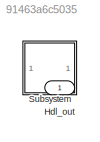
MODEL slx_91463a6c5035
KIND model
CONFIG AbsTol = auto
CONFIG EnableMultiTasking = off
CONFIG FixedStep = auto
CONFIG MaxStep = auto
CONFIG MinStep = auto
CONFIG RelTol = 1e-3
CONFIG SampleTimeConstraint = Unconstrained
CONFIG SolverName = VariableStepAuto
CONFIG StartTime = 0.0
CONFIG StopTime = 10.0
BLOCK [Outport] Hdl_out
  OutDataTypeStr = uint8
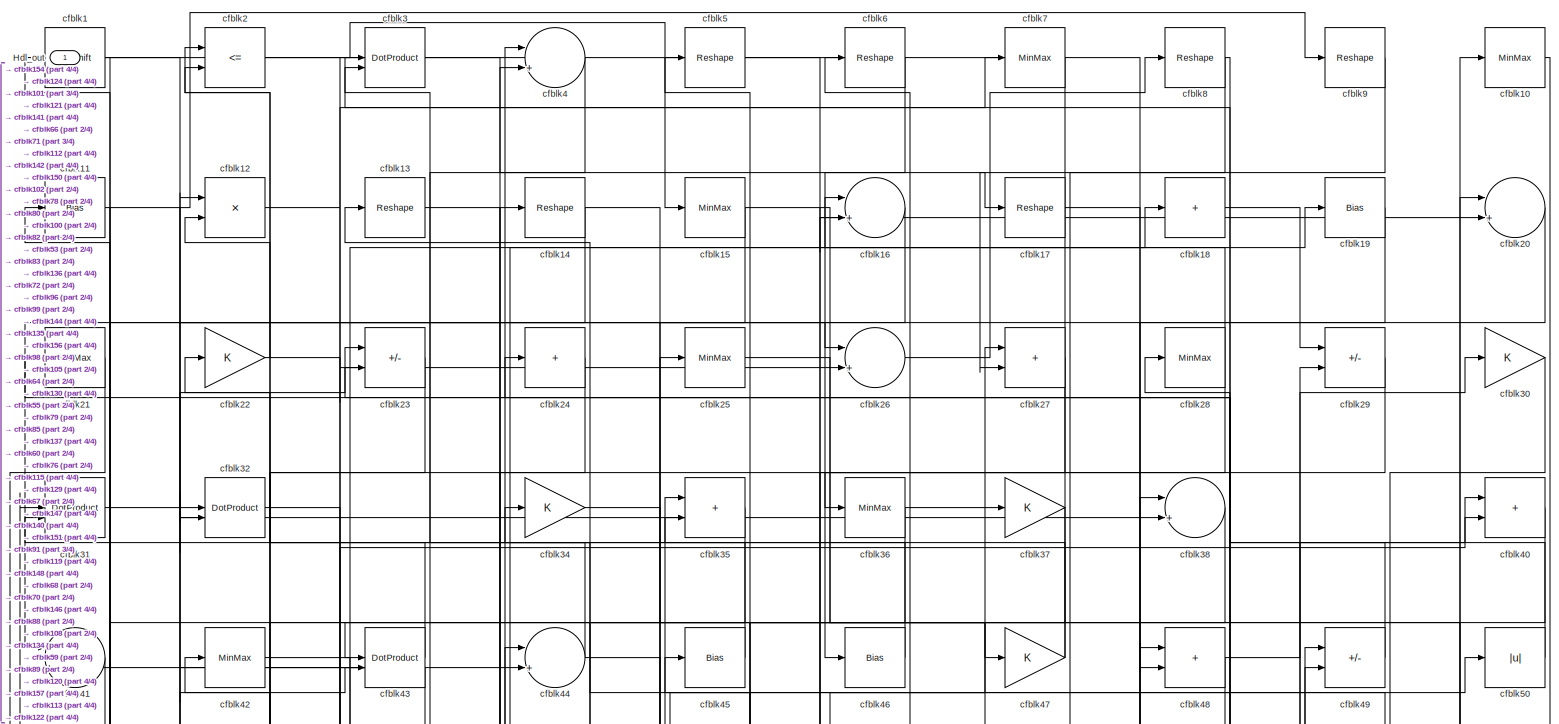
[diagram: Subsystem - part 1/4, full width, top band]
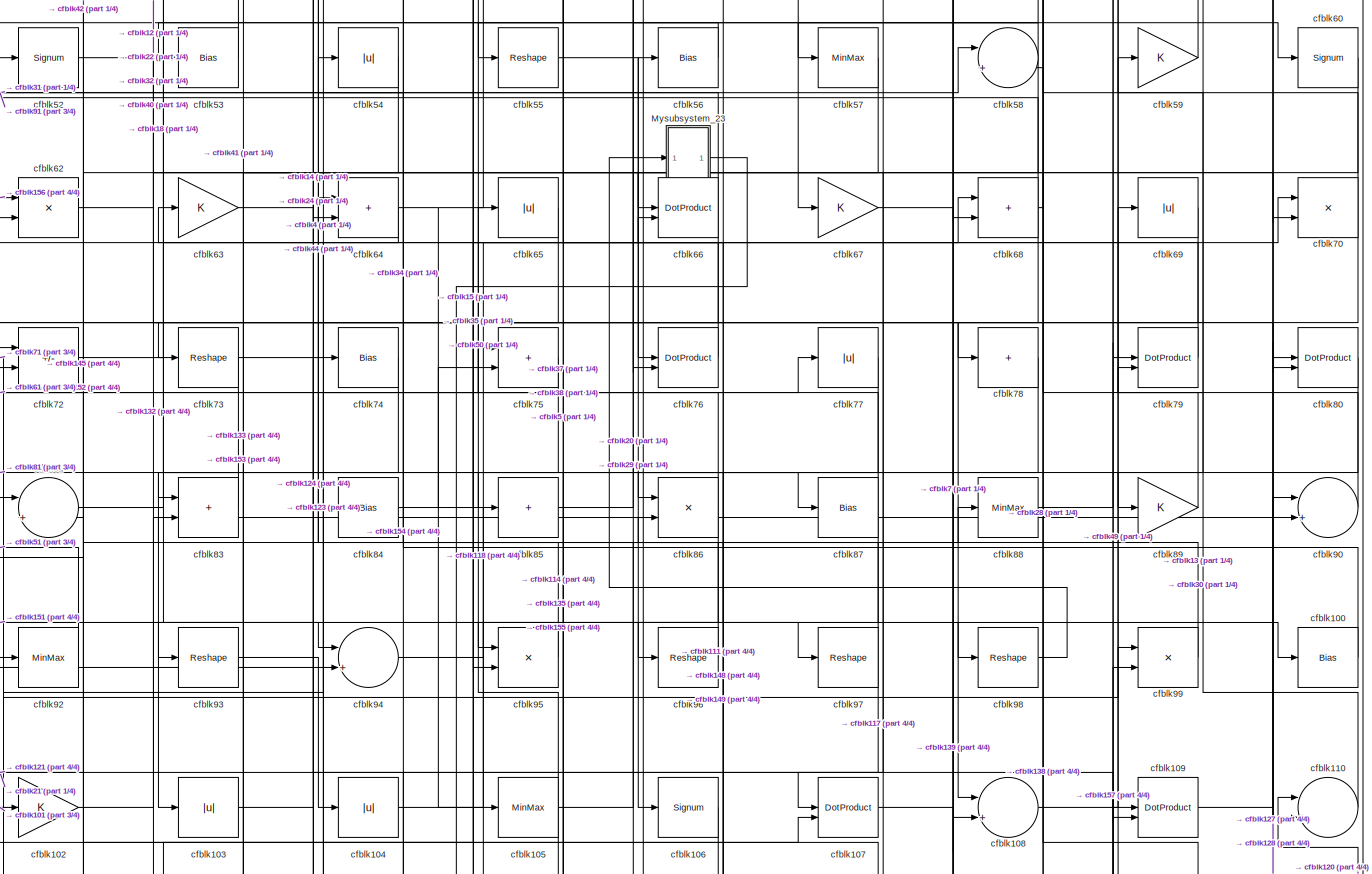
[diagram: Subsystem - part 2/4, full width, middle band]
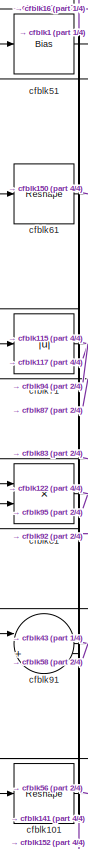
[diagram: Subsystem - part 3/4, middle left region]
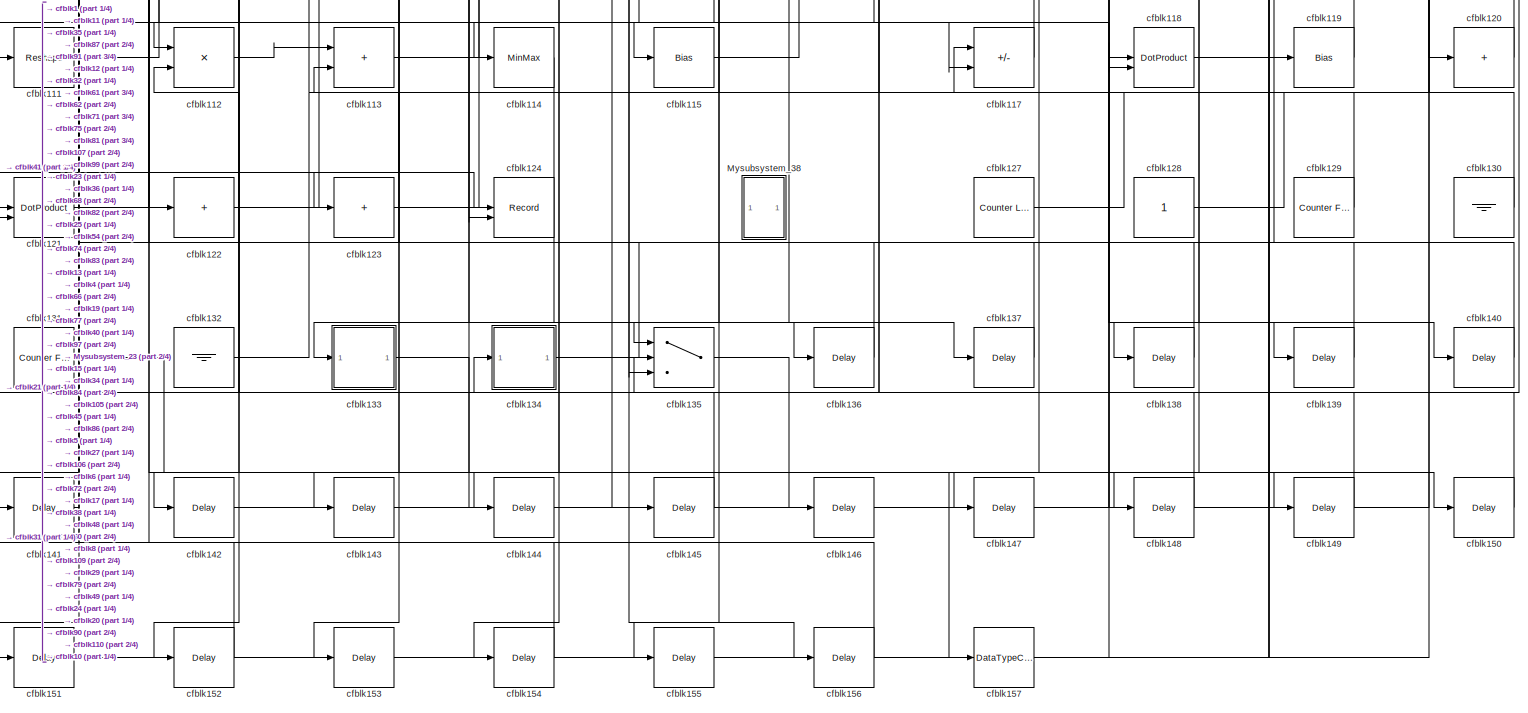
[diagram: Subsystem - part 4/4, full width, bottom band]
BLOCK [SubSystem] Subsystem
BLOCK [Outport] Subsystem/Hdl_out
  OutDataTypeStr = uint8
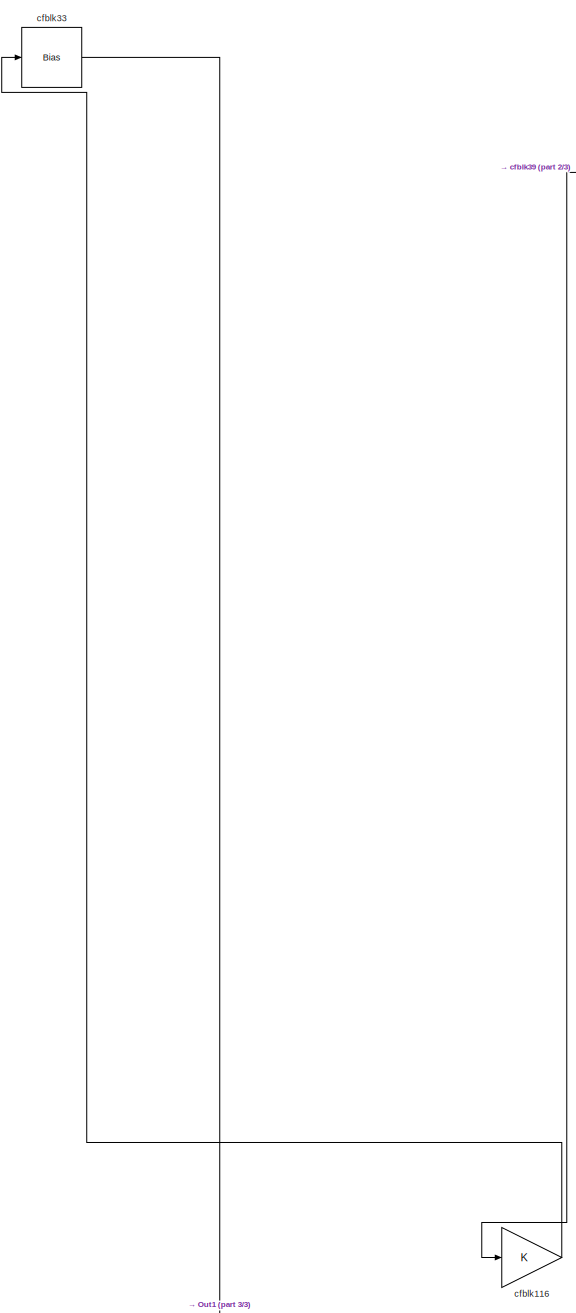
[diagram: Subsystem/Mysubsystem_23 - part 1/3, left side, full height]
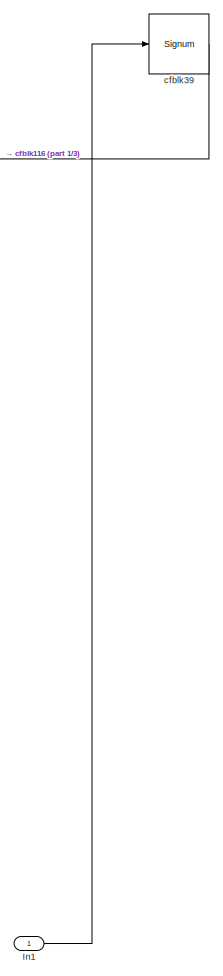
[diagram: Subsystem/Mysubsystem_23 - part 2/3, top right region]
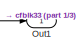
[diagram: Subsystem/Mysubsystem_23 - part 3/3, bottom center region]
BLOCK [SubSystem] Subsystem/Mysubsystem_23
  RTWFcnName = Mysubsystem_23
  RTWFcnNameOpts = User specified
  RTWFileNameOpts = Use function name
  RTWSystemCode = Reusable function
  TreatAsAtomicUnit = on
BLOCK [Inport] Subsystem/Mysubsystem_23/In1
BLOCK [Outport] Subsystem/Mysubsystem_23/Out1
BLOCK [Gain] Subsystem/Mysubsystem_23/cfblk116
BLOCK [Bias] Subsystem/Mysubsystem_23/cfblk33
  Bias = 0.0
  SaturateOnIntegerOverflow = off
BLOCK [Signum] Subsystem/Mysubsystem_23/cfblk39
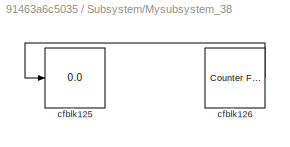
BLOCK [SubSystem] Subsystem/Mysubsystem_38
  RTWFcnName = Mysubsystem_38
  RTWFcnNameOpts = User specified
  RTWFileNameOpts = Use function name
  RTWSystemCode = Reusable function
  TreatAsAtomicUnit = on
BLOCK [Display] Subsystem/Mysubsystem_38/cfblk125
  Decimation = 1
BLOCK [Reference] Subsystem/Mysubsystem_38/cfblk126  REF=hdlsllib/Sources/Counter
Free-Running
  SourceBlock = hdlsllib/Sources/Counter\nFree-Running
  SourceType = Counter Free-Running
BLOCK [Reference] Subsystem/cfblk1  REF=hdlsllib/Logic and Bit
Operations/Bit Shift
  SourceBlock = hdlsllib/Logic and Bit\nOperations/Bit Shift
  SourceType = Bit Shift
BLOCK [MinMax] Subsystem/cfblk10
  OutDataTypeStr = uint8
BLOCK [Bias] Subsystem/cfblk100
  Bias = 0.0
  SaturateOnIntegerOverflow = off
BLOCK [Reshape] Subsystem/cfblk101
BLOCK [Gain] Subsystem/cfblk102
  OutDataTypeStr = uint8
BLOCK [Abs] Subsystem/cfblk103
  OutDataTypeStr = uint8
  SaturateOnIntegerOverflow = off
BLOCK [Abs] Subsystem/cfblk104
  OutDataTypeStr = uint8
  SaturateOnIntegerOverflow = off
BLOCK [MinMax] Subsystem/cfblk105
  OutDataTypeStr = uint8
BLOCK [Signum] Subsystem/cfblk106
BLOCK [DotProduct] Subsystem/cfblk107
  OutDataTypeStr = uint8
BLOCK [Sum] Subsystem/cfblk108
  Inputs = |++
  OutDataTypeStr = uint8
BLOCK [DotProduct] Subsystem/cfblk109
  OutDataTypeStr = uint8
BLOCK [Bias] Subsystem/cfblk11
  Bias = 0.0
  SaturateOnIntegerOverflow = off
BLOCK [Sum] Subsystem/cfblk110
  Inputs = |++
  OutDataTypeStr = uint8
BLOCK [Reshape] Subsystem/cfblk111
BLOCK [Product] Subsystem/cfblk112
  Inputs = */
  OutDataTypeStr = uint8
  RndMeth = Zero
  SaturateOnIntegerOverflow = on
BLOCK [Sum] Subsystem/cfblk113
  IconShape = rectangular
  OutDataTypeStr = uint8
BLOCK [MinMax] Subsystem/cfblk114
  OutDataTypeStr = uint8
BLOCK [Bias] Subsystem/cfblk115
  Bias = 0.0
  SaturateOnIntegerOverflow = off
BLOCK [Sum] Subsystem/cfblk117
  IconShape = rectangular
  Inputs = +-
  OutDataTypeStr = uint8
BLOCK [DotProduct] Subsystem/cfblk118
  OutDataTypeStr = uint8
BLOCK [Bias] Subsystem/cfblk119
  Bias = 0.0
  SaturateOnIntegerOverflow = off
BLOCK [Product] Subsystem/cfblk12
  Inputs = */
  OutDataTypeStr = uint8
  RndMeth = Zero
  SaturateOnIntegerOverflow = on
BLOCK [Sum] Subsystem/cfblk120
  IconShape = rectangular
  Inputs = +
  OutDataTypeStr = uint8
BLOCK [DotProduct] Subsystem/cfblk121
  OutDataTypeStr = uint8
BLOCK [Sum] Subsystem/cfblk122
  IconShape = rectangular
  Inputs = +
  OutDataTypeStr = uint8
BLOCK [Sum] Subsystem/cfblk123
  IconShape = rectangular
  Inputs = +
  OutDataTypeStr = uint8
BLOCK [Record] Subsystem/cfblk124
  CompatibilityTag = XY
  FileSettingsInternal = {"entries":[{"content":{"excelSettings":{"content":{},"type":"Streamout.ExcelSettings"}},"type":"Streamout.FileSettingStorage","uuid":""}],"packageUris":["http:\/\/schema.mathworks.com\/mf0\/streamout_blocks\/R2020a"],"version":"1.0"}
  Layout = [1 1]
  SignalsInternal = {"entries":[{"content":{"signals":[{"content":{"blockPath":[],"dimensions":[1],"domain":"","lineColor":"#a2142f","plots":[1],"port":1,"signalID":50600,"signalName":"cfblk41"},"type":"RecordBlkView.Signal","uuid":""},{"content":{"blockPath":[],"dimensions":[1],"domain":"","lineColor":"#139fff","plots":[1],"port":2,"signalID":50603,"signalName":"cfblk66"},"type":"RecordBlkView.Signal","uuid":""}]},"...<+142ch>
  VisualizationBindings = {"xyplotplugin":{"info":[{"series":[{"bindingParametersList":[{"parameter":"X-Axis","signalID":50600,"signalName":"cfblk41"},{"parameter":"Y-Axis","signalID":50603,"signalName":"cfblk66"}],"seriesID":16049}],"subplotID":1}]}}
  st = -1
BLOCK [Reference] Subsystem/cfblk127  REF=hdlsllib/Sources/Counter
Limited
  SourceBlock = hdlsllib/Sources/Counter\nLimited
  SourceType = Counter Limited
BLOCK [Constant] Subsystem/cfblk128
  OutDataTypeStr = uint8
  SampleTime = -1
BLOCK [Reference] Subsystem/cfblk129  REF=hdlsllib/Sources/Counter
Free-Running
  SourceBlock = hdlsllib/Sources/Counter\nFree-Running
  SourceType = Counter Free-Running
BLOCK [Reshape] Subsystem/cfblk13
BLOCK [Ground] Subsystem/cfblk130
BLOCK [Reference] Subsystem/cfblk131  REF=hdlsllib/Sources/Counter
Free-Running
  SourceBlock = hdlsllib/Sources/Counter\nFree-Running
  SourceType = Counter Free-Running
BLOCK [Ground] Subsystem/cfblk132
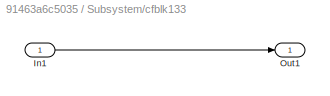
BLOCK [SubSystem] Subsystem/cfblk133
  LibrarySourceBlock = hdlsllib/Ports &\nSubsystems/Subsystem
BLOCK [Inport] Subsystem/cfblk133/In1
BLOCK [Outport] Subsystem/cfblk133/Out1
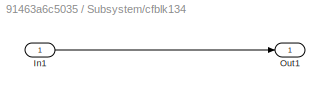
BLOCK [SubSystem] Subsystem/cfblk134
  LibrarySourceBlock = hdlsllib/Ports &\nSubsystems/Subsystem
BLOCK [Inport] Subsystem/cfblk134/In1
BLOCK [Outport] Subsystem/cfblk134/Out1
BLOCK [Switch] Subsystem/cfblk135
  InputSameDT = off
  OutDataTypeStr = uint8
  SaturateOnIntegerOverflow = off
BLOCK [Delay] Subsystem/cfblk136
  InputPortMap = u0
  SampleTime = 1
BLOCK [Delay] Subsystem/cfblk137
  InputPortMap = u0
  SampleTime = 1
BLOCK [Delay] Subsystem/cfblk138
  InputPortMap = u0
  SampleTime = 1
BLOCK [Delay] Subsystem/cfblk139
  InputPortMap = u0
  SampleTime = 1
BLOCK [Reshape] Subsystem/cfblk14
BLOCK [Delay] Subsystem/cfblk140
  InputPortMap = u0
  SampleTime = 1
BLOCK [Delay] Subsystem/cfblk141
  InputPortMap = u0
  SampleTime = 1
BLOCK [Delay] Subsystem/cfblk142
  InputPortMap = u0
  SampleTime = 1
BLOCK [Delay] Subsystem/cfblk143
  InputPortMap = u0
  SampleTime = 1
BLOCK [Delay] Subsystem/cfblk144
  InputPortMap = u0
  SampleTime = 1
BLOCK [Delay] Subsystem/cfblk145
  InputPortMap = u0
  SampleTime = 1
BLOCK [Delay] Subsystem/cfblk146
  InputPortMap = u0
  SampleTime = 1
BLOCK [Delay] Subsystem/cfblk147
  InputPortMap = u0
  SampleTime = 1
BLOCK [Delay] Subsystem/cfblk148
  InputPortMap = u0
  SampleTime = 1
BLOCK [Delay] Subsystem/cfblk149
  InputPortMap = u0
  SampleTime = 1
BLOCK [MinMax] Subsystem/cfblk15
  OutDataTypeStr = uint8
BLOCK [Delay] Subsystem/cfblk150
  InputPortMap = u0
  SampleTime = 1
BLOCK [Delay] Subsystem/cfblk151
  InputPortMap = u0
  SampleTime = 1
BLOCK [Delay] Subsystem/cfblk152
  InputPortMap = u0
  SampleTime = 1
BLOCK [Delay] Subsystem/cfblk153
  InputPortMap = u0
  SampleTime = 1
BLOCK [Delay] Subsystem/cfblk154
  InputPortMap = u0
  SampleTime = 1
BLOCK [Delay] Subsystem/cfblk155
  InputPortMap = u0
  SampleTime = 1
BLOCK [Delay] Subsystem/cfblk156
  InputPortMap = u0
  SampleTime = 1
BLOCK [DataTypeConversion] Subsystem/cfblk157
  OutDataTypeStr = uint8
  RndMeth = Floor
  SaturateOnIntegerOverflow = off
BLOCK [Sum] Subsystem/cfblk16
  Inputs = |++
  OutDataTypeStr = uint8
BLOCK [Reshape] Subsystem/cfblk17
BLOCK [Sum] Subsystem/cfblk18
  IconShape = rectangular
  Inputs = +
  OutDataTypeStr = uint8
BLOCK [Bias] Subsystem/cfblk19
  Bias = 0.0
  SaturateOnIntegerOverflow = off
BLOCK [RelationalOperator] Subsystem/cfblk2
  InputSameDT = off
  Operator = <=
  OutDataTypeStr = boolean
BLOCK [Sum] Subsystem/cfblk20
  Inputs = |++
  OutDataTypeStr = uint8
BLOCK [MinMax] Subsystem/cfblk21
  OutDataTypeStr = uint8
BLOCK [Gain] Subsystem/cfblk22
  OutDataTypeStr = uint8
BLOCK [Sum] Subsystem/cfblk23
  IconShape = rectangular
  Inputs = +-
  OutDataTypeStr = uint8
BLOCK [Sum] Subsystem/cfblk24
  IconShape = rectangular
  Inputs = +
  OutDataTypeStr = uint8
BLOCK [MinMax] Subsystem/cfblk25
  OutDataTypeStr = uint8
BLOCK [Sum] Subsystem/cfblk26
  Inputs = |++
  OutDataTypeStr = uint8
BLOCK [Sum] Subsystem/cfblk27
  IconShape = rectangular
  OutDataTypeStr = uint8
BLOCK [MinMax] Subsystem/cfblk28
  OutDataTypeStr = uint8
BLOCK [Sum] Subsystem/cfblk29
  IconShape = rectangular
  Inputs = +-
  OutDataTypeStr = uint8
BLOCK [DotProduct] Subsystem/cfblk3
  OutDataTypeStr = uint8
BLOCK [Gain] Subsystem/cfblk30
  OutDataTypeStr = uint8
BLOCK [DotProduct] Subsystem/cfblk31
  OutDataTypeStr = uint8
BLOCK [DotProduct] Subsystem/cfblk32
  OutDataTypeStr = uint8
BLOCK [Gain] Subsystem/cfblk34
  OutDataTypeStr = uint8
BLOCK [Sum] Subsystem/cfblk35
  IconShape = rectangular
  OutDataTypeStr = uint8
BLOCK [MinMax] Subsystem/cfblk36
  OutDataTypeStr = uint8
BLOCK [Gain] Subsystem/cfblk37
  OutDataTypeStr = uint8
BLOCK [Sum] Subsystem/cfblk38
  Inputs = |++
  OutDataTypeStr = uint8
BLOCK [Sum] Subsystem/cfblk4
  Inputs = |++
  OutDataTypeStr = uint8
BLOCK [Sum] Subsystem/cfblk40
  IconShape = rectangular
  OutDataTypeStr = uint8
BLOCK [Sum] Subsystem/cfblk41
  Inputs = |++
  OutDataTypeStr = uint8
BLOCK [MinMax] Subsystem/cfblk42
  OutDataTypeStr = uint8
BLOCK [DotProduct] Subsystem/cfblk43
  OutDataTypeStr = uint8
BLOCK [Sum] Subsystem/cfblk44
  Inputs = |++
  OutDataTypeStr = uint8
BLOCK [Bias] Subsystem/cfblk45
  Bias = 0.0
  SaturateOnIntegerOverflow = off
BLOCK [Bias] Subsystem/cfblk46
  Bias = 0.0
  SaturateOnIntegerOverflow = off
BLOCK [Gain] Subsystem/cfblk47
  OutDataTypeStr = uint8
BLOCK [Sum] Subsystem/cfblk48
  IconShape = rectangular
  OutDataTypeStr = uint8
BLOCK [Sum] Subsystem/cfblk49
  IconShape = rectangular
  Inputs = +-
  OutDataTypeStr = uint8
BLOCK [Reshape] Subsystem/cfblk5
BLOCK [Abs] Subsystem/cfblk50
  OutDataTypeStr = uint8
  SaturateOnIntegerOverflow = off
BLOCK [Bias] Subsystem/cfblk51
  Bias = 0.0
  SaturateOnIntegerOverflow = off
BLOCK [Signum] Subsystem/cfblk52
BLOCK [Bias] Subsystem/cfblk53
  Bias = 0.0
  SaturateOnIntegerOverflow = off
BLOCK [Abs] Subsystem/cfblk54
  OutDataTypeStr = uint8
  SaturateOnIntegerOverflow = off
BLOCK [Reshape] Subsystem/cfblk55
BLOCK [Bias] Subsystem/cfblk56
  Bias = 0.0
  SaturateOnIntegerOverflow = off
BLOCK [MinMax] Subsystem/cfblk57
  OutDataTypeStr = uint8
BLOCK [Sum] Subsystem/cfblk58
  Inputs = |++
  OutDataTypeStr = uint8
BLOCK [Gain] Subsystem/cfblk59
  OutDataTypeStr = uint8
BLOCK [Reshape] Subsystem/cfblk6
BLOCK [Signum] Subsystem/cfblk60
BLOCK [Reshape] Subsystem/cfblk61
BLOCK [Product] Subsystem/cfblk62
  Inputs = */
  OutDataTypeStr = uint8
  RndMeth = Zero
  SaturateOnIntegerOverflow = on
BLOCK [Gain] Subsystem/cfblk63
  OutDataTypeStr = uint8
BLOCK [Sum] Subsystem/cfblk64
  IconShape = rectangular
  OutDataTypeStr = uint8
BLOCK [Abs] Subsystem/cfblk65
  OutDataTypeStr = uint8
  SaturateOnIntegerOverflow = off
BLOCK [DotProduct] Subsystem/cfblk66
  OutDataTypeStr = uint8
BLOCK [Gain] Subsystem/cfblk67
  OutDataTypeStr = uint8
BLOCK [Sum] Subsystem/cfblk68
  IconShape = rectangular
  OutDataTypeStr = uint8
BLOCK [Abs] Subsystem/cfblk69
  OutDataTypeStr = uint8
  SaturateOnIntegerOverflow = off
BLOCK [MinMax] Subsystem/cfblk7
  OutDataTypeStr = uint8
BLOCK [Product] Subsystem/cfblk70
  Inputs = */
  OutDataTypeStr = uint8
  RndMeth = Zero
  SaturateOnIntegerOverflow = on
BLOCK [Abs] Subsystem/cfblk71
  OutDataTypeStr = uint8
  SaturateOnIntegerOverflow = off
BLOCK [Sum] Subsystem/cfblk72
  IconShape = rectangular
  Inputs = +-
  OutDataTypeStr = uint8
BLOCK [Reshape] Subsystem/cfblk73
BLOCK [Bias] Subsystem/cfblk74
  Bias = 0.0
  SaturateOnIntegerOverflow = off
BLOCK [Sum] Subsystem/cfblk75
  IconShape = rectangular
  OutDataTypeStr = uint8
BLOCK [DotProduct] Subsystem/cfblk76
  OutDataTypeStr = uint8
BLOCK [Abs] Subsystem/cfblk77
  OutDataTypeStr = uint8
  SaturateOnIntegerOverflow = off
BLOCK [Sum] Subsystem/cfblk78
  IconShape = rectangular
  Inputs = +
  OutDataTypeStr = uint8
BLOCK [DotProduct] Subsystem/cfblk79
  OutDataTypeStr = uint8
BLOCK [Reshape] Subsystem/cfblk8
BLOCK [DotProduct] Subsystem/cfblk80
  OutDataTypeStr = uint8
BLOCK [Product] Subsystem/cfblk81
  Inputs = */
  OutDataTypeStr = uint8
  RndMeth = Zero
  SaturateOnIntegerOverflow = on
BLOCK [Sum] Subsystem/cfblk82
  Inputs = |++
  OutDataTypeStr = uint8
BLOCK [Sum] Subsystem/cfblk83
  IconShape = rectangular
  OutDataTypeStr = uint8
BLOCK [Bias] Subsystem/cfblk84
  Bias = 0.0
  SaturateOnIntegerOverflow = off
BLOCK [Sum] Subsystem/cfblk85
  IconShape = rectangular
  Inputs = +
  OutDataTypeStr = uint8
BLOCK [Product] Subsystem/cfblk86
  Inputs = */
  OutDataTypeStr = uint8
  RndMeth = Zero
  SaturateOnIntegerOverflow = on
BLOCK [Bias] Subsystem/cfblk87
  Bias = 0.0
  SaturateOnIntegerOverflow = off
BLOCK [MinMax] Subsystem/cfblk88
  OutDataTypeStr = uint8
BLOCK [Gain] Subsystem/cfblk89
  OutDataTypeStr = uint8
BLOCK [Reshape] Subsystem/cfblk9
BLOCK [Sum] Subsystem/cfblk90
  Inputs = |++
  OutDataTypeStr = uint8
BLOCK [Sum] Subsystem/cfblk91
  Inputs = |++
  OutDataTypeStr = uint8
BLOCK [MinMax] Subsystem/cfblk92
  OutDataTypeStr = uint8
BLOCK [Reshape] Subsystem/cfblk93
BLOCK [Sum] Subsystem/cfblk94
  Inputs = |++
  OutDataTypeStr = uint8
BLOCK [Product] Subsystem/cfblk95
  Inputs = */
  OutDataTypeStr = uint8
  RndMeth = Zero
  SaturateOnIntegerOverflow = on
BLOCK [Reshape] Subsystem/cfblk96
BLOCK [Reshape] Subsystem/cfblk97
BLOCK [Reshape] Subsystem/cfblk98
BLOCK [Product] Subsystem/cfblk99
  Inputs = */
  OutDataTypeStr = uint8
  RndMeth = Zero
  SaturateOnIntegerOverflow = on
LINE Subsystem/Mysubsystem_23/In1:1 -> Subsystem/Mysubsystem_23/cfblk39:1
LINE Subsystem/Mysubsystem_23/cfblk116:1 -> Subsystem/Mysubsystem_23/cfblk33:1
LINE Subsystem/Mysubsystem_23/cfblk33:1 -> Subsystem/Mysubsystem_23/Out1:1
LINE Subsystem/Mysubsystem_23/cfblk39:1 -> Subsystem/Mysubsystem_23/cfblk116:1
LINE Subsystem/Mysubsystem_23:1 -> Subsystem/cfblk145:1
LINE Subsystem/Mysubsystem_38/cfblk126:1 -> Subsystem/Mysubsystem_38/cfblk125:1
LINE Subsystem/cfblk100:1 -> Subsystem/cfblk34:1
LINE Subsystem/cfblk101:1 -> Subsystem/cfblk56:1
LINE Subsystem/cfblk102:1 -> Subsystem/cfblk40:1
LINE Subsystem/cfblk103:1 -> Subsystem/cfblk74:1
LINE Subsystem/cfblk104:1 -> Subsystem/cfblk70:1
NET Subsystem/cfblk105:1 -> Subsystem/cfblk114:1, Subsystem/cfblk35:1, Subsystem/cfblk88:1
LINE Subsystem/cfblk106:1 -> Subsystem/cfblk111:1
LINE Subsystem/cfblk107:1 -> Subsystem/cfblk139:1
LINE Subsystem/cfblk108:1 -> Subsystem/cfblk49:2
LINE Subsystem/cfblk109:1 -> Subsystem/cfblk80:1
LINE Subsystem/cfblk10:1 -> Subsystem/cfblk135:2
NET Subsystem/cfblk110:1 -> Subsystem/cfblk59:1, Subsystem/cfblk79:2
NET Subsystem/cfblk111:1 -> Subsystem/cfblk107:2, Subsystem/cfblk99:1
LINE Subsystem/cfblk112:1 -> Subsystem/cfblk113:1
LINE Subsystem/cfblk113:1 -> Subsystem/cfblk19:1
LINE Subsystem/cfblk114:1 -> Subsystem/cfblk143:1
LINE Subsystem/cfblk115:1 -> Subsystem/cfblk27:1
LINE Subsystem/cfblk117:1 -> Subsystem/cfblk72:2
LINE Subsystem/cfblk118:1 -> Subsystem/cfblk119:1
LINE Subsystem/cfblk119:1 -> Subsystem/cfblk24:1
NET Subsystem/cfblk11:1 -> Subsystem/cfblk121:1, Subsystem/cfblk26:1, Subsystem/cfblk9:1
LINE Subsystem/cfblk120:1 -> Subsystem/cfblk110:1
NET Subsystem/cfblk121:1 -> Subsystem/cfblk12:1, Subsystem/cfblk75:1
LINE Subsystem/cfblk122:1 -> Subsystem/cfblk25:1
LINE Subsystem/cfblk123:1 -> Subsystem/cfblk77:1
LINE Subsystem/cfblk127:1 -> Subsystem/cfblk90:1
LINE Subsystem/cfblk128:1 -> Subsystem/cfblk110:2
LINE Subsystem/cfblk129:1 -> Subsystem/cfblk6:1
NET Subsystem/cfblk12:1 -> Subsystem/cfblk68:2, Subsystem/cfblk7:1
LINE Subsystem/cfblk130:1 -> Subsystem/cfblk45:1
LINE Subsystem/cfblk131:1 -> Subsystem/cfblk157:1
NET Subsystem/cfblk132:1 -> Subsystem/cfblk117:1, Subsystem/cfblk90:2
LINE Subsystem/cfblk133/In1:1 -> Subsystem/cfblk133/Out1:1
LINE Subsystem/cfblk133:1 -> Subsystem/cfblk149:1
LINE Subsystem/cfblk134/In1:1 -> Subsystem/cfblk134/Out1:1
LINE Subsystem/cfblk134:1 -> Subsystem/cfblk49:1
LINE Subsystem/cfblk135:1 -> Subsystem/cfblk146:1
LINE Subsystem/cfblk136:1 -> Subsystem/cfblk32:1
LINE Subsystem/cfblk137:1 -> Subsystem/cfblk1:1
LINE Subsystem/cfblk138:1 -> Subsystem/cfblk112:2
LINE Subsystem/cfblk139:1 -> Subsystem/cfblk83:2
LINE Subsystem/cfblk13:1 -> Subsystem/cfblk136:1
LINE Subsystem/cfblk140:1 -> Subsystem/cfblk113:2
LINE Subsystem/cfblk141:1 -> Subsystem/cfblk81:2
LINE Subsystem/cfblk142:1 -> Subsystem/cfblk4:2
LINE Subsystem/cfblk143:1 -> Subsystem/cfblk118:1
LINE Subsystem/cfblk144:1 -> Subsystem/cfblk48:1
LINE Subsystem/cfblk145:1 -> Subsystem/cfblk82:1
LINE Subsystem/cfblk146:1 -> Subsystem/cfblk29:2
LINE Subsystem/cfblk147:1 -> Subsystem/cfblk20:1
LINE Subsystem/cfblk148:1 -> Subsystem/cfblk66:2
LINE Subsystem/cfblk149:1 -> Subsystem/cfblk86:2
NET Subsystem/cfblk14:1 -> Subsystem/cfblk41:1, Subsystem/cfblk47:1
LINE Subsystem/cfblk150:1 -> Subsystem/cfblk12:2
LINE Subsystem/cfblk151:1 -> Subsystem/cfblk38:1
LINE Subsystem/cfblk152:1 -> Subsystem/cfblk91:2
LINE Subsystem/cfblk153:1 -> Subsystem/cfblk99:2
LINE Subsystem/cfblk154:1 -> Subsystem/cfblk31:1
LINE Subsystem/cfblk155:1 -> Subsystem/cfblk79:1
LINE Subsystem/cfblk156:1 -> Subsystem/cfblk62:1
NET Subsystem/cfblk157:1 -> Subsystem/cfblk109:1, Subsystem/cfblk10:1
NET Subsystem/cfblk15:1 -> Subsystem/cfblk135:3, Subsystem/cfblk16:2, Subsystem/cfblk67:1
LINE Subsystem/cfblk16:1 -> Subsystem/cfblk101:1
LINE Subsystem/cfblk17:1 -> Subsystem/cfblk140:1
LINE Subsystem/cfblk18:1 -> Subsystem/cfblk29:1
LINE Subsystem/cfblk19:1 -> Subsystem/cfblk32:2
NET Subsystem/cfblk1:1 -> Subsystem/cfblk44:2, Subsystem/cfblk71:1
LINE Subsystem/cfblk20:1 -> Subsystem/cfblk48:2
LINE Subsystem/cfblk21:1 -> Subsystem/cfblk134:1
NET Subsystem/cfblk22:1 -> Subsystem/cfblk2:2, Subsystem/cfblk80:2
LINE Subsystem/cfblk23:1 -> Subsystem/cfblk142:1
LINE Subsystem/cfblk24:1 -> Subsystem/cfblk64:2
LINE Subsystem/cfblk25:1 -> Subsystem/cfblk120:1
LINE Subsystem/cfblk26:1 -> Subsystem/cfblk8:1
LINE Subsystem/cfblk27:1 -> Subsystem/cfblk36:1
NET Subsystem/cfblk28:1 -> Subsystem/cfblk16:1, Subsystem/cfblk72:1
LINE Subsystem/cfblk29:1 -> Subsystem/cfblk76:2
NET Subsystem/cfblk2:1 -> Subsystem/cfblk15:1, Subsystem/cfblk26:2
LINE Subsystem/cfblk30:1 -> Subsystem/cfblk89:1
NET Subsystem/cfblk31:1 -> Subsystem/cfblk23:1, Subsystem/cfblk38:2
LINE Subsystem/cfblk32:1 -> Subsystem/cfblk78:1
LINE Subsystem/cfblk34:1 -> Subsystem/cfblk156:1
LINE Subsystem/cfblk35:1 -> Subsystem/cfblk141:1
NET Subsystem/cfblk36:1 -> Subsystem/cfblk112:1, Subsystem/cfblk37:1
LINE Subsystem/cfblk37:1 -> Subsystem/cfblk55:1
LINE Subsystem/cfblk38:1 -> Subsystem/cfblk85:1
LINE Subsystem/cfblk3:1 -> Subsystem/cfblk17:1
LINE Subsystem/cfblk40:1 -> Subsystem/cfblk144:1
LINE Subsystem/cfblk41:1 -> Subsystem/cfblk124:1
LINE Subsystem/cfblk42:1 -> Subsystem/cfblk100:1
LINE Subsystem/cfblk43:1 -> Subsystem/cfblk2:1
NET Subsystem/cfblk44:1 -> Subsystem/cfblk22:1, Subsystem/cfblk98:1
NET Subsystem/cfblk45:1 -> Subsystem/cfblk11:1, Subsystem/cfblk43:1
LINE Subsystem/cfblk46:1 -> Subsystem/cfblk35:2
NET Subsystem/cfblk47:1 -> Subsystem/Hdl_out:1, Subsystem/cfblk3:1
NET Subsystem/cfblk48:1 -> Subsystem/cfblk40:2, Subsystem/cfblk91:1
LINE Subsystem/cfblk49:1 -> Subsystem/cfblk23:2
LINE Subsystem/cfblk4:1 -> Subsystem/cfblk83:1
LINE Subsystem/cfblk50:1 -> Subsystem/cfblk3:2
LINE Subsystem/cfblk51:1 -> Subsystem/cfblk94:1
LINE Subsystem/cfblk52:1 -> Subsystem/cfblk87:1
LINE Subsystem/cfblk53:1 -> Subsystem/cfblk41:2
LINE Subsystem/cfblk54:1 -> Subsystem/cfblk133:1
LINE Subsystem/cfblk55:1 -> Subsystem/cfblk76:1
LINE Subsystem/cfblk56:1 -> Subsystem/cfblk53:1
LINE Subsystem/cfblk57:1 -> Subsystem/cfblk106:1
NET Subsystem/cfblk58:1 -> Subsystem/cfblk57:1, Subsystem/cfblk93:1
LINE Subsystem/cfblk59:1 -> Subsystem/cfblk13:1
NET Subsystem/cfblk5:1 -> Subsystem/cfblk137:1, Subsystem/cfblk60:1
NET Subsystem/cfblk60:1 -> Subsystem/cfblk107:1, Subsystem/cfblk138:1, Subsystem/cfblk82:2
LINE Subsystem/cfblk61:1 -> Subsystem/cfblk150:1
LINE Subsystem/cfblk62:1 -> Subsystem/cfblk66:1
LINE Subsystem/cfblk63:1 -> Subsystem/cfblk84:1
NET Subsystem/cfblk64:1 -> Subsystem/cfblk105:1, Subsystem/cfblk50:1, Subsystem/cfblk62:2
LINE Subsystem/cfblk65:1 -> Subsystem/cfblk92:1
NET Subsystem/cfblk66:1 -> Subsystem/cfblk124:2, Subsystem/cfblk31:2
LINE Subsystem/cfblk67:1 -> Subsystem/cfblk108:2
NET Subsystem/cfblk68:1 -> Subsystem/cfblk152:1, Subsystem/cfblk28:1, Subsystem/cfblk52:1
LINE Subsystem/cfblk69:1 -> Subsystem/cfblk108:1
LINE Subsystem/cfblk6:1 -> Subsystem/cfblk46:1
NET Subsystem/cfblk70:1 -> Subsystem/cfblk102:1, Subsystem/cfblk21:1
NET Subsystem/cfblk71:1 -> Subsystem/cfblk115:1, Subsystem/cfblk117:2, Subsystem/cfblk94:2
LINE Subsystem/cfblk72:1 -> Subsystem/cfblk14:1
NET Subsystem/cfblk73:1 -> Subsystem/cfblk103:1, Subsystem/cfblk109:2
LINE Subsystem/cfblk74:1 -> Subsystem/cfblk123:1
LINE Subsystem/cfblk75:1 -> Subsystem/cfblk153:1
LINE Subsystem/cfblk76:1 -> Subsystem/cfblk63:1
LINE Subsystem/cfblk77:1 -> Subsystem/cfblk135:1
NET Subsystem/cfblk78:1 -> Subsystem/cfblk95:1, Subsystem/cfblk96:1
NET Subsystem/cfblk79:1 -> Subsystem/cfblk5:1, Subsystem/cfblk73:1
LINE Subsystem/cfblk7:1 -> Subsystem/cfblk70:2
LINE Subsystem/cfblk80:1 -> Subsystem/cfblk86:1
NET Subsystem/cfblk81:1 -> Subsystem/cfblk122:1, Subsystem/cfblk95:2
LINE Subsystem/cfblk82:1 -> Subsystem/cfblk18:1
LINE Subsystem/cfblk83:1 -> Subsystem/cfblk81:1
NET Subsystem/cfblk84:1 -> Subsystem/cfblk118:2, Subsystem/cfblk68:1, Subsystem/cfblk75:2
LINE Subsystem/cfblk85:1 -> Subsystem/cfblk20:2
NET Subsystem/cfblk86:1 -> Subsystem/cfblk155:1, Subsystem/cfblk65:1
NET Subsystem/cfblk87:1 -> Subsystem/cfblk151:1, Subsystem/cfblk61:1
LINE Subsystem/cfblk88:1 -> Subsystem/cfblk30:1
LINE Subsystem/cfblk89:1 -> Subsystem/cfblk69:1
NET Subsystem/cfblk8:1 -> Subsystem/cfblk147:1, Subsystem/cfblk148:1
LINE Subsystem/cfblk90:1 -> Subsystem/cfblk58:2
NET Subsystem/cfblk91:1 -> Subsystem/cfblk43:2, Subsystem/cfblk58:1
LINE Subsystem/cfblk92:1 -> Subsystem/cfblk51:1
LINE Subsystem/cfblk93:1 -> Subsystem/cfblk104:1
LINE Subsystem/cfblk94:1 -> Subsystem/cfblk97:1
LINE Subsystem/cfblk95:1 -> Subsystem/cfblk64:1
LINE Subsystem/cfblk96:1 -> Subsystem/cfblk4:1
NET Subsystem/cfblk97:1 -> Subsystem/cfblk121:2, Subsystem/cfblk154:1, Subsystem/cfblk54:1
LINE Subsystem/cfblk98:1 -> Subsystem/Mysubsystem_23:1
NET Subsystem/cfblk99:1 -> Subsystem/cfblk42:1, Subsystem/cfblk44:1
LINE Subsystem/cfblk9:1 -> Subsystem/cfblk27:2
note: NET lines group one-source signal fan-out (src -> all destinations, sorted); 1:1 wires keep LINE
